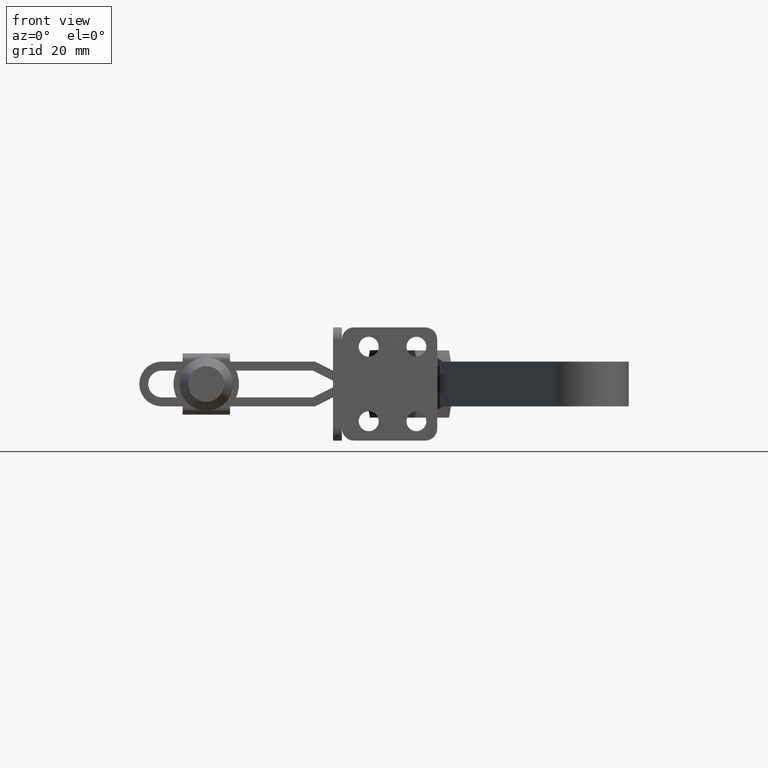
[diagram: clean part render]
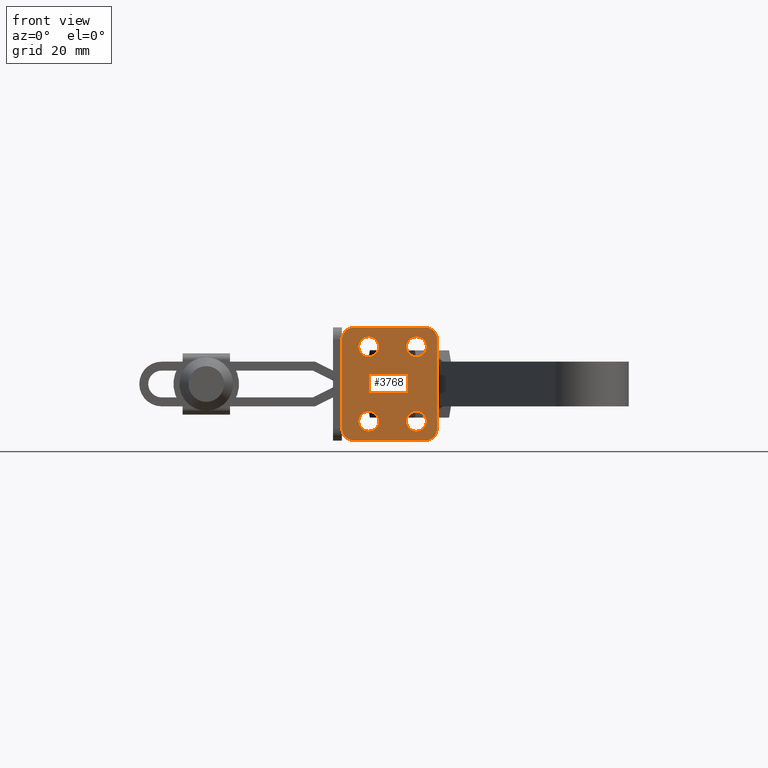
[diagram: same view with one face highlighted and labeled with its STEP entity id]
A machine part, front view. The second image highlights one B-rep face of the part: STEP entity #3768.
In plain terms, the highlighted planar face has unit normal (-0, 1, 0).
Its self-contained STEP definition (entity closure, byte-faithful):
#17 = EDGE_LOOP ( 'NONE', ( #2749, #2167 ) ) ;
#21 = VECTOR ( 'NONE', #6580, 1000.000000000000000 ) ;
#24 = CARTESIAN_POINT ( 'NONE',  ( 12.00000000000005200, -5.827225276386383300E-014, 15.84999999999996400 ) ) ;
#42 = EDGE_CURVE ( 'NONE', #8411, #267, #841, .T. ) ;
#198 = CIRCLE ( 'NONE', #7263, 3.350000000000000500 ) ;
#267 = VERTEX_POINT ( 'NONE', #6208 ) ;
#280 = CARTESIAN_POINT ( 'NONE',  ( 28.00000000000005300, -4.394632805808663400E-014, 12.49999999999996600 ) ) ;
#284 = CARTESIAN_POINT ( 'NONE',  ( 28.00000000000005300, 3.742665899420521700E-014, -9.149999999999991500 ) ) ;
#357 = DIRECTION ( 'NONE',  ( 0.0000000000000000000, -3.758567531283695500E-015, 1.000000000000000000 ) ) ;
#472 = VECTOR ( 'NONE', #6457, 1000.000000000000000 ) ;
#603 = FACE_OUTER_BOUND ( 'NONE', #2125, .T. ) ;
#619 = CARTESIAN_POINT ( 'NONE',  ( 12.00000000000005200, 4.828313674802877700E-014, -12.49999999999999100 ) ) ;
#745 = DIRECTION ( 'NONE',  ( 0.0000000000000000000, -3.758567531283695500E-015, 1.000000000000000000 ) ) ;
#798 = CIRCLE ( 'NONE', #6427, 3.349999999999998800 ) ;
#841 = CIRCLE ( 'NONE', #8125, 3.999999999999994700 ) ;
#904 = VERTEX_POINT ( 'NONE', #1465 ) ;
#918 = DIRECTION ( 'NONE',  ( 0.0000000000000000000, 3.712070012080771700E-015, -1.000000000000000000 ) ) ;
#974 = VERTEX_POINT ( 'NONE', #1137 ) ;
#1013 = CIRCLE ( 'NONE', #8436, 3.349999999999998800 ) ;
#1068 = EDGE_CURVE ( 'NONE', #5846, #267, #4785, .T. ) ;
#1108 = VERTEX_POINT ( 'NONE', #2079 ) ;
#1129 = DIRECTION ( 'NONE',  ( 1.084202172485509100E-016, -1.000000000000000000, -3.758567531283695500E-015 ) ) ;
#1137 = CARTESIAN_POINT ( 'NONE',  ( 3.000000000000052800, -5.464378949326942300E-014, -14.99999999999998600 ) ) ;
#1143 = VERTEX_POINT ( 'NONE', #6379 ) ;
#1155 = FACE_BOUND ( 'NONE', #1196, .T. ) ;
#1191 = CARTESIAN_POINT ( 'NONE',  ( 3.000000000000052800, -5.464378949326942300E-014, 14.99999999999998600 ) ) ;
#1196 = EDGE_LOOP ( 'NONE', ( #6085, #5218 ) ) ;
#1218 = CARTESIAN_POINT ( 'NONE',  ( 12.00000000000005200, 3.569193551822839700E-014, -9.149999999999989700 ) ) ;
#1230 = AXIS2_PLACEMENT_3D ( 'NONE', #1247, #7910, #8341 ) ;
#1247 = CARTESIAN_POINT ( 'NONE',  ( 28.00000000000005300, 5.001786022400559100E-014, -12.49999999999999100 ) ) ;
#1276 = CARTESIAN_POINT ( 'NONE',  ( 3.000000000000065700, -9.974659986866640800E-015, 2.999999999999936100 ) ) ;
#1287 = VERTEX_POINT ( 'NONE', #24 ) ;
#1355 = CIRCLE ( 'NONE', #1230, 3.349999999999998800 ) ;
#1376 = CIRCLE ( 'NONE', #2876, 3.999999999999994700 ) ;
#1403 = DIRECTION ( 'NONE',  ( 0.0000000000000000000, 3.712070012080771700E-015, 1.000000000000000000 ) ) ;
#1465 = CARTESIAN_POINT ( 'NONE',  ( 12.00000000000005200, -3.308985030426306700E-014, 9.149999999999964800 ) ) ;
#1607 = AXIS2_PLACEMENT_3D ( 'NONE', #3252, #6296, #3224 ) ;
#1617 = CARTESIAN_POINT ( 'NONE',  ( 28.00000000000005300, 5.001786022400559100E-014, -12.49999999999999100 ) ) ;
#2045 = ORIENTED_EDGE ( 'NONE', *, *, #5597, .F. ) ;
#2079 = CARTESIAN_POINT ( 'NONE',  ( 28.00000000000005300, -3.135512682828626600E-014, 9.149999999999966600 ) ) ;
#2125 = EDGE_LOOP ( 'NONE', ( #5921, #7688, #7633, #7959, #7814, #7577, #9081, #3574 ) ) ;
#2141 = CARTESIAN_POINT ( 'NONE',  ( 12.00000000000005200, 4.828313674802877700E-014, -12.49999999999999100 ) ) ;
#2167 = ORIENTED_EDGE ( 'NONE', *, *, #6889, .F. ) ;
#2203 = CARTESIAN_POINT ( 'NONE',  ( 34.99999999999992900, 4.770489558936219500E-015, 4.260053927997806500E-013 ) ) ;
#2285 = LINE ( 'NONE', #1276, #6177 ) ;
#2345 = DIRECTION ( 'NONE',  ( 1.084202172485509100E-016, -1.000000000000000000, -3.758567531283695500E-015 ) ) ;
#2464 = DIRECTION ( 'NONE',  ( 1.000000000000000000, 1.124869700630674200E-016, 3.469446951953627200E-015 ) ) ;
#2499 = EDGE_CURVE ( 'NONE', #974, #1143, #2564, .T. ) ;
#2564 = CIRCLE ( 'NONE', #4872, 4.000000000000003600 ) ;
#2635 = VERTEX_POINT ( 'NONE', #8605 ) ;
#2749 = ORIENTED_EDGE ( 'NONE', *, *, #6150, .F. ) ;
#2778 = AXIS2_PLACEMENT_3D ( 'NONE', #6748, #3656, #4615 ) ;
#2828 = DIRECTION ( 'NONE',  ( 0.0000000000000000000, 3.758567531283693900E-015, -1.000000000000000000 ) ) ;
#2873 = CARTESIAN_POINT ( 'NONE',  ( -25.41349567437935500, -7.242470512203169600E-014, 19.00000000000007500 ) ) ;
#2876 = AXIS2_PLACEMENT_3D ( 'NONE', #7141, #5539, #1403 ) ;
#2937 = CIRCLE ( 'NONE', #2778, 3.350000000000000500 ) ;
#3054 = EDGE_CURVE ( 'NONE', #6143, #6128, #6517, .T. ) ;
#3224 = DIRECTION ( 'NONE',  ( 0.0000000000000000000, 3.758567531283695500E-015, -1.000000000000000000 ) ) ;
#3251 = EDGE_CURVE ( 'NONE', #6164, #5846, #1376, .T. ) ;
#3252 = CARTESIAN_POINT ( 'NONE',  ( 12.00000000000005200, -4.568105153406344700E-014, 12.49999999999996600 ) ) ;
#3330 = EDGE_CURVE ( 'NONE', #5602, #2635, #1355, .T. ) ;
#3407 = ORIENTED_EDGE ( 'NONE', *, *, #8500, .F. ) ;
#3435 = VECTOR ( 'NONE', #2464, 1000.000000000000000 ) ;
#3492 = EDGE_CURVE ( 'NONE', #1108, #4635, #4729, .T. ) ;
#3493 = EDGE_CURVE ( 'NONE', #6143, #974, #2285, .T. ) ;
#3574 = ORIENTED_EDGE ( 'NONE', *, *, #3054, .F. ) ;
#3635 = EDGE_LOOP ( 'NONE', ( #2045, #8997 ) ) ;
#3656 = DIRECTION ( 'NONE',  ( 1.084202172485509100E-016, -1.000000000000000000, -3.758567531283695500E-015 ) ) ;
#3692 = DIRECTION ( 'NONE',  ( -1.124869700630545500E-016, 1.000000000000000000, 3.712070012080772500E-015 ) ) ;
#3696 = CARTESIAN_POINT ( 'NONE',  ( 28.00000000000005300, -5.653752928788700700E-014, 15.84999999999996400 ) ) ;
#3761 = DIRECTION ( 'NONE',  ( -1.124869700630545500E-016, 1.000000000000000000, 3.712070012080772500E-015 ) ) ;
#3768 = ADVANCED_FACE ( 'NONE', ( #4617, #1155, #5297, #7628, #603 ), #9186, .F. ) ;
#3942 = DIRECTION ( 'NONE',  ( 0.0000000000000000000, 3.758567531283693900E-015, -1.000000000000000000 ) ) ;
#4103 = VERTEX_POINT ( 'NONE', #1218 ) ;
#4286 = AXIS2_PLACEMENT_3D ( 'NONE', #619, #2345, #4503 ) ;
#4503 = DIRECTION ( 'NONE',  ( 0.0000000000000000000, -3.758567531283695500E-015, 1.000000000000000000 ) ) ;
#4615 = DIRECTION ( 'NONE',  ( 0.0000000000000000000, 3.758567531283695500E-015, -1.000000000000000000 ) ) ;
#4617 = FACE_BOUND ( 'NONE', #7465, .T. ) ;
#4635 = VERTEX_POINT ( 'NONE', #3696 ) ;
#4700 = LINE ( 'NONE', #2873, #472 ) ;
#4729 = CIRCLE ( 'NONE', #6773, 3.349999999999998800 ) ;
#4785 = LINE ( 'NONE', #2203, #21 ) ;
#4798 = DIRECTION ( 'NONE',  ( 1.124869700630545500E-016, -1.000000000000000000, 3.712070012080772500E-015 ) ) ;
#4866 = EDGE_CURVE ( 'NONE', #2635, #5602, #798, .T. ) ;
#4872 = AXIS2_PLACEMENT_3D ( 'NONE', #7695, #4798, #9399 ) ;
#4963 = DIRECTION ( 'NONE',  ( 8.673617379884027600E-016, 3.712070012080772500E-015, -1.000000000000000000 ) ) ;
#5060 = LINE ( 'NONE', #8875, #3435 ) ;
#5162 = EDGE_CURVE ( 'NONE', #1143, #6164, #5060, .T. ) ;
#5178 = DIRECTION ( 'NONE',  ( 1.084202172485509100E-016, -1.000000000000000000, -3.758567531283695500E-015 ) ) ;
#5218 = ORIENTED_EDGE ( 'NONE', *, *, #3330, .F. ) ;
#5266 = CIRCLE ( 'NONE', #1607, 3.350000000000000500 ) ;
#5297 = FACE_BOUND ( 'NONE', #17, .T. ) ;
#5515 = EDGE_CURVE ( 'NONE', #6128, #8411, #4700, .T. ) ;
#5539 = DIRECTION ( 'NONE',  ( 1.124869700630545500E-016, -1.000000000000000000, 3.712070012080772500E-015 ) ) ;
#5597 = EDGE_CURVE ( 'NONE', #904, #1287, #2937, .T. ) ;
#5602 = VERTEX_POINT ( 'NONE', #284 ) ;
#5846 = VERTEX_POINT ( 'NONE', #9232 ) ;
#5864 = CARTESIAN_POINT ( 'NONE',  ( 7.000000000000071900, -6.895525817007808200E-014, 18.99999999999996400 ) ) ;
#5921 = ORIENTED_EDGE ( 'NONE', *, *, #3493, .T. ) ;
#5994 = DIRECTION ( 'NONE',  ( 0.0000000000000000000, -3.758567531283696300E-015, 1.000000000000000000 ) ) ;
#6010 = DIRECTION ( 'NONE',  ( 1.084202172485509100E-016, -1.000000000000000000, -3.758567531283695500E-015 ) ) ;
#6085 = ORIENTED_EDGE ( 'NONE', *, *, #4866, .F. ) ;
#6128 = VERTEX_POINT ( 'NONE', #5864 ) ;
#6143 = VERTEX_POINT ( 'NONE', #1191 ) ;
#6150 = EDGE_CURVE ( 'NONE', #9086, #4103, #9201, .T. ) ;
#6164 = VERTEX_POINT ( 'NONE', #7339 ) ;
#6170 = ORIENTED_EDGE ( 'NONE', *, *, #3492, .F. ) ;
#6177 = VECTOR ( 'NONE', #6321, 1000.000000000000000 ) ;
#6208 = CARTESIAN_POINT ( 'NONE',  ( 34.99999999999995700, -5.074066167232160800E-014, 14.99999999999987400 ) ) ;
#6296 = DIRECTION ( 'NONE',  ( 1.084202172485509100E-016, -1.000000000000000000, -3.758567531283695500E-015 ) ) ;
#6321 = DIRECTION ( 'NONE',  ( 0.0000000000000000000, 3.758567531283695500E-015, -1.000000000000000000 ) ) ;
#6379 = CARTESIAN_POINT ( 'NONE',  ( 7.000000000000071900, -6.895525817007808200E-014, -18.99999999999996400 ) ) ;
#6427 = AXIS2_PLACEMENT_3D ( 'NONE', #1617, #6010, #5994 ) ;
#6457 = DIRECTION ( 'NONE',  ( 1.000000000000000000, 1.124869700630674200E-016, -3.469446951953627200E-015 ) ) ;
#6517 = CIRCLE ( 'NONE', #7514, 4.000000000000003600 ) ;
#6580 = DIRECTION ( 'NONE',  ( 0.0000000000000000000, -3.758567531283695500E-015, 1.000000000000000000 ) ) ;
#6748 = CARTESIAN_POINT ( 'NONE',  ( 12.00000000000005200, -4.568105153406344700E-014, 12.49999999999996600 ) ) ;
#6773 = AXIS2_PLACEMENT_3D ( 'NONE', #8622, #1129, #3942 ) ;
#6889 = EDGE_CURVE ( 'NONE', #4103, #9086, #198, .T. ) ;
#7141 = CARTESIAN_POINT ( 'NONE',  ( 30.99999999999996800, -5.117434254131580900E-014, -14.99999999999987400 ) ) ;
#7263 = AXIS2_PLACEMENT_3D ( 'NONE', #2141, #5178, #745 ) ;
#7339 = CARTESIAN_POINT ( 'NONE',  ( 30.99999999999998200, -6.591949208711867000E-014, -18.99999999999988300 ) ) ;
#7465 = EDGE_LOOP ( 'NONE', ( #6170, #3407 ) ) ;
#7514 = AXIS2_PLACEMENT_3D ( 'NONE', #8757, #3692, #4963 ) ;
#7577 = ORIENTED_EDGE ( 'NONE', *, *, #42, .F. ) ;
#7628 = FACE_BOUND ( 'NONE', #3635, .T. ) ;
#7633 = ORIENTED_EDGE ( 'NONE', *, *, #5162, .T. ) ;
#7688 = ORIENTED_EDGE ( 'NONE', *, *, #2499, .T. ) ;
#7695 = CARTESIAN_POINT ( 'NONE',  ( 7.000000000000055100, -5.421010862427522200E-014, -14.99999999999995700 ) ) ;
#7770 = CARTESIAN_POINT ( 'NONE',  ( 30.99999999999998200, -6.591949208711867000E-014, 18.99999999999988300 ) ) ;
#7814 = ORIENTED_EDGE ( 'NONE', *, *, #1068, .T. ) ;
#7910 = DIRECTION ( 'NONE',  ( 1.084202172485509100E-016, -1.000000000000000000, -3.758567531283695500E-015 ) ) ;
#7959 = ORIENTED_EDGE ( 'NONE', *, *, #3251, .T. ) ;
#8007 = AXIS2_PLACEMENT_3D ( 'NONE', #8020, #9217, #357 ) ;
#8020 = CARTESIAN_POINT ( 'NONE',  ( 3.000000000000065700, -9.974659986866640800E-015, 2.999999999999936100 ) ) ;
#8125 = AXIS2_PLACEMENT_3D ( 'NONE', #9039, #3761, #918 ) ;
#8261 = CARTESIAN_POINT ( 'NONE',  ( 12.00000000000005200, 6.087433797782914500E-014, -15.84999999999998900 ) ) ;
#8311 = EDGE_CURVE ( 'NONE', #1287, #904, #5266, .T. ) ;
#8341 = DIRECTION ( 'NONE',  ( 0.0000000000000000000, -3.758567531283696300E-015, 1.000000000000000000 ) ) ;
#8411 = VERTEX_POINT ( 'NONE', #7770 ) ;
#8436 = AXIS2_PLACEMENT_3D ( 'NONE', #280, #8753, #2828 ) ;
#8500 = EDGE_CURVE ( 'NONE', #4635, #1108, #1013, .T. ) ;
#8605 = CARTESIAN_POINT ( 'NONE',  ( 28.00000000000005300, 6.260906145380596500E-014, -15.84999999999998900 ) ) ;
#8622 = CARTESIAN_POINT ( 'NONE',  ( 28.00000000000005300, -4.394632805808663400E-014, 12.49999999999996600 ) ) ;
#8753 = DIRECTION ( 'NONE',  ( 1.084202172485509100E-016, -1.000000000000000000, -3.758567531283695500E-015 ) ) ;
#8757 = CARTESIAN_POINT ( 'NONE',  ( 7.000000000000055100, -5.421010862427522200E-014, 14.99999999999995700 ) ) ;
#8875 = CARTESIAN_POINT ( 'NONE',  ( -25.41349567437935500, -7.242470512203169600E-014, -19.00000000000007500 ) ) ;
#8997 = ORIENTED_EDGE ( 'NONE', *, *, #8311, .F. ) ;
#9039 = CARTESIAN_POINT ( 'NONE',  ( 30.99999999999996800, -5.117434254131580900E-014, 14.99999999999987400 ) ) ;
#9081 = ORIENTED_EDGE ( 'NONE', *, *, #5515, .F. ) ;
#9086 = VERTEX_POINT ( 'NONE', #8261 ) ;
#9186 = PLANE ( 'NONE',  #8007 ) ;
#9201 = CIRCLE ( 'NONE', #4286, 3.350000000000000500 ) ;
#9217 = DIRECTION ( 'NONE',  ( -1.084202172485509100E-016, 1.000000000000000000, 3.758567531283695500E-015 ) ) ;
#9232 = CARTESIAN_POINT ( 'NONE',  ( 34.99999999999995700, -5.074066167232160800E-014, -14.99999999999987400 ) ) ;
#9399 = DIRECTION ( 'NONE',  ( 8.673617379884027600E-016, 3.712070012080772500E-015, 1.000000000000000000 ) ) ;